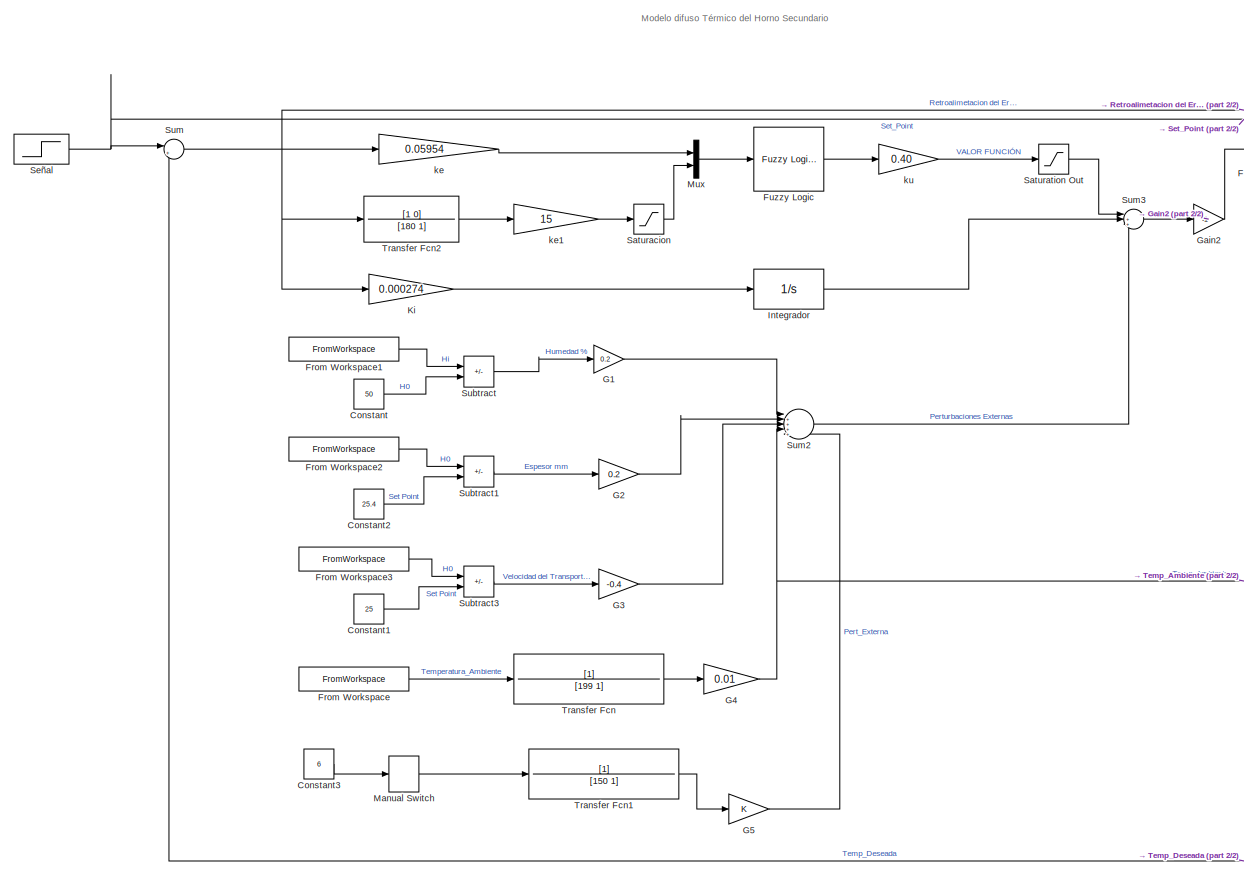
[diagram: root canvas - part 1/2, center side, full height]
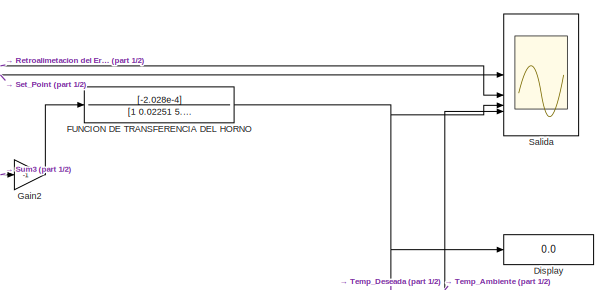
[diagram: root canvas - part 2/2, top right region]
MODEL slx_c59b79000063
KIND model
CONFIG AbsTol = auto
CONFIG EnableMultiTasking = off
CONFIG FixedStep = auto
CONFIG MaxStep = auto
CONFIG MinStep = auto
CONFIG RelTol = 1e-3
CONFIG SampleTimeConstraint = Unconstrained
CONFIG SolverName = VariableStepAuto
CONFIG StartTime = 0.0
CONFIG StopTime = 30000
BLOCK [Constant] Constant
  Value = 50
BLOCK [Constant] Constant1
  Value = 25
BLOCK [Constant] Constant2
  Value = 25.4
BLOCK [Constant] Constant3
  Value = 6
BLOCK [Display] Display
  Decimation = 3
  NameLocation = top
BLOCK [TransferFcn] FUNCION DE TRANSFERENCIA DEL HORNO
  Denominator = [1 0.02251 5.11e-05]
  Numerator = [-2.028e-4]
BLOCK [FromWorkspace] From Workspace
  OutputAfterFinalValue = Holding final value
  VariableName = deltaTempAmb_s
BLOCK [FromWorkspace] From Workspace1
  OutputAfterFinalValue = Holding final value
  VariableName = humedad_s
BLOCK [FromWorkspace] From Workspace2
  OutputAfterFinalValue = Holding final value
  VariableName = espesor_s
BLOCK [FromWorkspace] From Workspace3
  OutputAfterFinalValue = Holding final value
  VariableName = velocidad_s
BLOCK [Reference] Fuzzy Logic   REF=fuzblock/Fuzzy Logic   (lib defined in mdl_858b3b3e7478)
Controller
  SourceBlock = fuzblock/Fuzzy Logic \nController
  SourceType = Fuzzy Inference System
BLOCK [Gain] G1
  Gain = 0.2
BLOCK [Gain] G2
  Gain = 0.2
BLOCK [Gain] G3
  Gain = -0.4
BLOCK [Gain] G4
  Gain = 0.01
BLOCK [Gain] G5
BLOCK [Gain] Gain2
  Gain = -1
BLOCK [Integrator] Integrador 
  LimitOutput = on
  LowerSaturationLimit = -1500
  UpperSaturationLimit = 1500
BLOCK [Gain] Ki
  Gain = 0.000274
BLOCK [ManualSwitch] Manual Switch
  CurrentSetting = 0
BLOCK [Mux] Mux
  DisplayOption = bar
  Inputs = 2
BLOCK [Scope] Salida
  ActiveDisplayYMaximum = 227.15518132604959
  ActiveDisplayYMinimum = -27.155181326049586
  ContainerLayout = {"WindowBounds":[128,48,1280,768],"gridDimensions":{"w":1,"h":1},"tileCount":1,"tileCoverage":1,"columnWeights":1,"rowWeights":1,"tileOccupancy":{}}
  DataLoggingVariableName = ScopeData2
  DisplayFullPath = on
  Floating = off
  GraphicalSettings = {"Style":{"BackgroundColor":[0.12941176470588237,0.12941176470588237,0.12941176470588237],"AxesColor":[0.07058823529411765,0.07058823529411765,0.07058823529411765],"LabelsColor":[0.8509803921568627,0.8509803921568627,0.8509803921568627],"PreserveColors":false,"Visible":[true,true,true,true],"LineStyle":["-","-","-","-"],"LineWidth":[1.5,1.5,1.5,1.5],"BarWidth":[0.9,0.9,0.9,0.9],"LineColor":["auto"...<+3540ch>
  MultipleDisplayCache = [{"MaxYLimMag":227.15518132604959,"MaxYLimReal":227.15518132604959,"MinYLimMag":0,"MinYLimReal":-27.155181326049586,"PlotAsMagnitudePhase":false,"ShowGrid":true,"ShowLegend":true,"Title":"%<SignalLabel>","YLabel":""}]
  NumInputPorts = 4
  ScopeFrameLocation = window
  ShowLegend = on
  WasSavedAsWebScope = on
  WindowPosition = [1.000000,41.000000,1536.000000,801.000000,]
BLOCK [Saturate] Saturacion 
  LowerLimit = -180
  UpperLimit = 180
BLOCK [Saturate] Saturation Out
  LowerLimit = 0
  UpperLimit = 100
BLOCK [Step] Señal
  After = 200
  SampleTime = 0
  Time = 0
BLOCK [Sum] Subtract
  IconShape = rectangular
  Inputs = +-
BLOCK [Sum] Subtract1
  IconShape = rectangular
  Inputs = +-
BLOCK [Sum] Subtract3
  IconShape = rectangular
  Inputs = +-
BLOCK [Sum] Sum
  Inputs = |+-
BLOCK [Sum] Sum2
  Inputs = |+++++
BLOCK [Sum] Sum3
  Inputs = |+++
BLOCK [TransferFcn] Transfer Fcn
  Denominator = [199 1]
BLOCK [TransferFcn] Transfer Fcn1
  Denominator = [150 1]
BLOCK [TransferFcn] Transfer Fcn2
  Denominator = [180 1]
  Numerator = [1 0]
BLOCK [Gain] ke
  Gain = 0.05954
BLOCK [Gain] ke1
  Gain = 15
BLOCK [Gain] ku
  Gain = 0.40
ANNOTATION (root): Modelo difuso Térmico del Horno Secundario
LINE Constant1:1 -> Subtract3:2
LINE Constant2:1 -> Subtract1:2
LINE Constant3:1 -> Manual Switch:1
LINE Constant:1 -> Subtract:2
NET FUNCION DE TRANSFERENCIA DEL HORNO:1 -> Display:1, Salida:3, Sum:2
LINE From Workspace1:1 -> Subtract:1
LINE From Workspace2:1 -> Subtract1:1
LINE From Workspace3:1 -> Subtract3:1
LINE From Workspace:1 -> Transfer Fcn:1
LINE Fuzzy Logic :1 -> ku:1
LINE G1:1 -> Sum2:1
LINE G2:1 -> Sum2:2
LINE G3:1 -> Sum2:3
NET G4:1 -> Salida:4, Sum2:4
LINE G5:1 -> Sum2:5
LINE Gain2:1 -> FUNCION DE TRANSFERENCIA DEL HORNO:1
LINE Integrador :1 -> Sum3:2
LINE Ki:1 -> Integrador :1
LINE Manual Switch:1 -> Transfer Fcn1:1
LINE Mux:1 -> Fuzzy Logic :1
LINE Saturacion :1 -> Mux:2
LINE Saturation Out:1 -> Sum3:1
NET Señal:1 -> Salida:1, Sum:1
LINE Subtract1:1 -> G2:1
LINE Subtract3:1 -> G3:1
LINE Subtract:1 -> G1:1
LINE Sum2:1 -> Sum3:3
LINE Sum3:1 -> Gain2:1
NET Sum:1 -> Ki:1, Salida:2, Transfer Fcn2:1, ke:1
LINE Transfer Fcn1:1 -> G5:1
LINE Transfer Fcn2:1 -> ke1:1
LINE Transfer Fcn:1 -> G4:1
LINE ke1:1 -> Saturacion :1
LINE ke:1 -> Mux:1
LINE ku:1 -> Saturation Out:1
note: NET lines group one-source signal fan-out (src -> all destinations, sorted); 1:1 wires keep LINE
